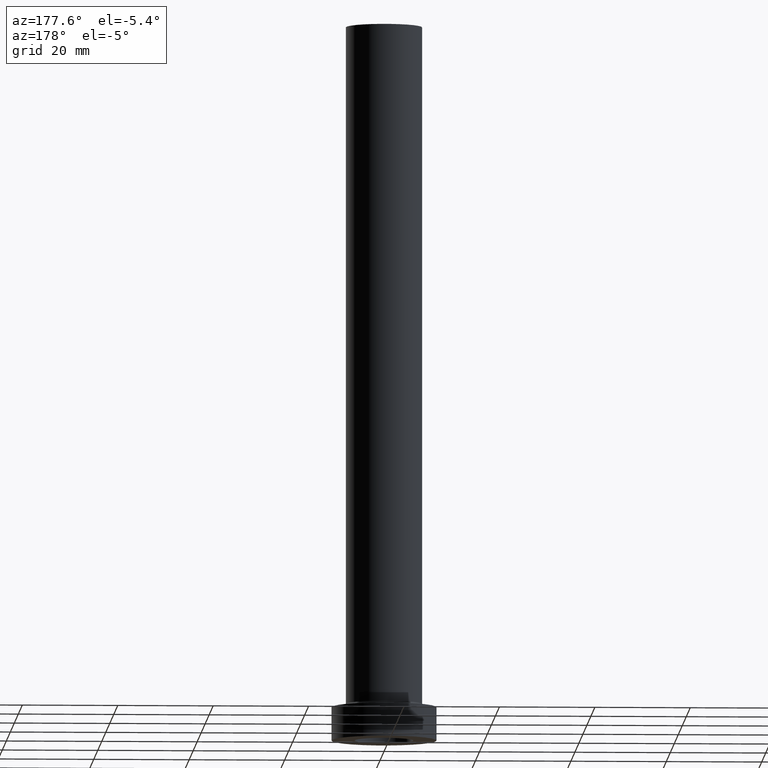
[diagram: clean part render]
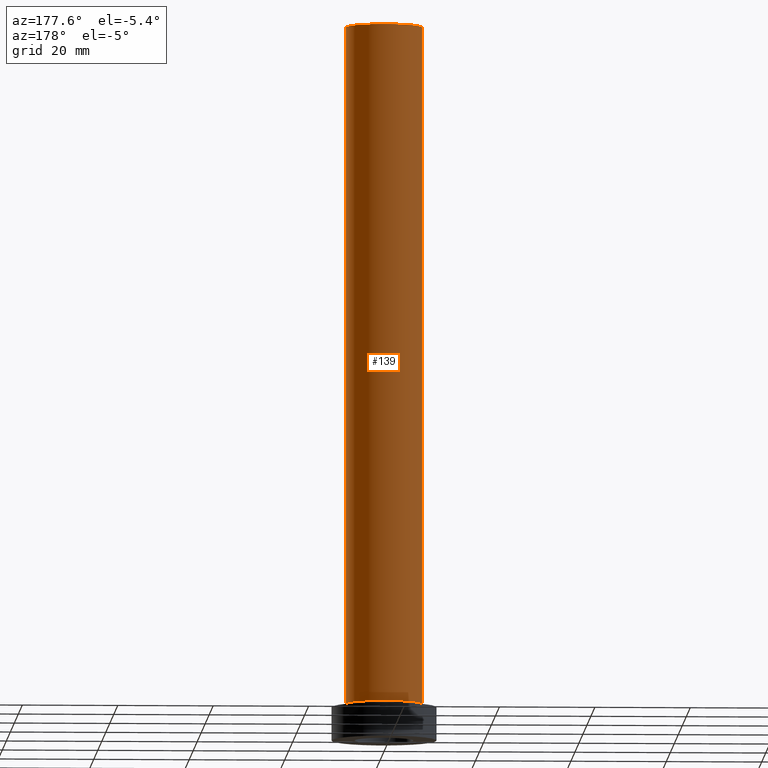
[diagram: same view with one face highlighted and labeled with its STEP entity id]
A machine part, auxiliary view. The second image highlights one B-rep face of the part: STEP entity #139.
In plain terms, the highlighted cylindrical surface (partial cylindrical patch) has radius 8 mm, axis along (-0, -0, -1).
Its self-contained STEP definition (entity closure, byte-faithful):
#8 = VERTEX_POINT ( 'NONE', #444 ) ;
#17 = EDGE_CURVE ( 'NONE', #146, #321, #232, .T. ) ;
#23 = CARTESIAN_POINT ( 'NONE',  ( 0.000000000000000000, 0.000000000000000000, 150.0000000000000000 ) ) ;
#40 = ORIENTED_EDGE ( 'NONE', *, *, #152, .F. ) ;
#56 = CYLINDRICAL_SURFACE ( 'NONE', #215, 8.000000000000000000 ) ;
#85 = FACE_OUTER_BOUND ( 'NONE', #333, .T. ) ;
#121 = DIRECTION ( 'NONE',  ( -0.000000000000000000, -0.000000000000000000, -1.000000000000000000 ) ) ;
#138 = ORIENTED_EDGE ( 'NONE', *, *, #288, .T. ) ;
#139 = ADVANCED_FACE ( 'NONE', ( #85 ), #56, .T. ) ;
#146 = VERTEX_POINT ( 'NONE', #269 ) ;
#152 = EDGE_CURVE ( 'NONE', #8, #146, #276, .T. ) ;
#161 = CARTESIAN_POINT ( 'NONE',  ( 0.000000000000000000, 0.000000000000000000, 150.0000000000000000 ) ) ;
#163 = CARTESIAN_POINT ( 'NONE',  ( 0.000000000000000000, 0.000000000000000000, 7.700000000000012612 ) ) ;
#202 = EDGE_CURVE ( 'NONE', #227, #321, #318, .T. ) ;
#207 = VECTOR ( 'NONE', #121, 1000.000000000000000 ) ;
#215 = AXIS2_PLACEMENT_3D ( 'NONE', #23, #413, #237 ) ;
#227 = VERTEX_POINT ( 'NONE', #424 ) ;
#229 = ORIENTED_EDGE ( 'NONE', *, *, #202, .T. ) ;
#232 = LINE ( 'NONE', #369, #207 ) ;
#237 = DIRECTION ( 'NONE',  ( -1.000000000000000000, 0.000000000000000000, 0.000000000000000000 ) ) ;
#240 = DIRECTION ( 'NONE',  ( 0.000000000000000000, 0.000000000000000000, 1.000000000000000000 ) ) ;
#254 = ORIENTED_EDGE ( 'NONE', *, *, #17, .F. ) ;
#255 = VECTOR ( 'NONE', #394, 1000.000000000000000 ) ;
#269 = CARTESIAN_POINT ( 'NONE',  ( -8.000000000000000000, 0.000000000000000000, 150.0000000000000000 ) ) ;
#276 = CIRCLE ( 'NONE', #352, 8.000000000000000000 ) ;
#288 = EDGE_CURVE ( 'NONE', #8, #227, #359, .T. ) ;
#318 = CIRCLE ( 'NONE', #456, 8.000000000000000000 ) ;
#321 = VERTEX_POINT ( 'NONE', #398 ) ;
#325 = CARTESIAN_POINT ( 'NONE',  ( 8.000000000000000000, 9.797174393178825657E-16, 150.0000000000000000 ) ) ;
#333 = EDGE_LOOP ( 'NONE', ( #40, #138, #229, #254 ) ) ;
#352 = AXIS2_PLACEMENT_3D ( 'NONE', #161, #411, #377 ) ;
#359 = LINE ( 'NONE', #325, #255 ) ;
#369 = CARTESIAN_POINT ( 'NONE',  ( -8.000000000000000000, 0.000000000000000000, 150.0000000000000000 ) ) ;
#377 = DIRECTION ( 'NONE',  ( 1.000000000000000000, 0.000000000000000000, 0.000000000000000000 ) ) ;
#381 = DIRECTION ( 'NONE',  ( 1.000000000000000000, 0.000000000000000000, 0.000000000000000000 ) ) ;
#394 = DIRECTION ( 'NONE',  ( -0.000000000000000000, -0.000000000000000000, -1.000000000000000000 ) ) ;
#398 = CARTESIAN_POINT ( 'NONE',  ( -8.000000000000000000, 0.000000000000000000, 7.700000000000012612 ) ) ;
#411 = DIRECTION ( 'NONE',  ( 0.000000000000000000, 0.000000000000000000, 1.000000000000000000 ) ) ;
#413 = DIRECTION ( 'NONE',  ( -0.000000000000000000, -0.000000000000000000, -1.000000000000000000 ) ) ;
#424 = CARTESIAN_POINT ( 'NONE',  ( 8.000000000000000000, 9.797174393178825657E-16, 7.700000000000012612 ) ) ;
#444 = CARTESIAN_POINT ( 'NONE',  ( 8.000000000000000000, 9.797174393178825657E-16, 150.0000000000000000 ) ) ;
#456 = AXIS2_PLACEMENT_3D ( 'NONE', #163, #240, #381 ) ;